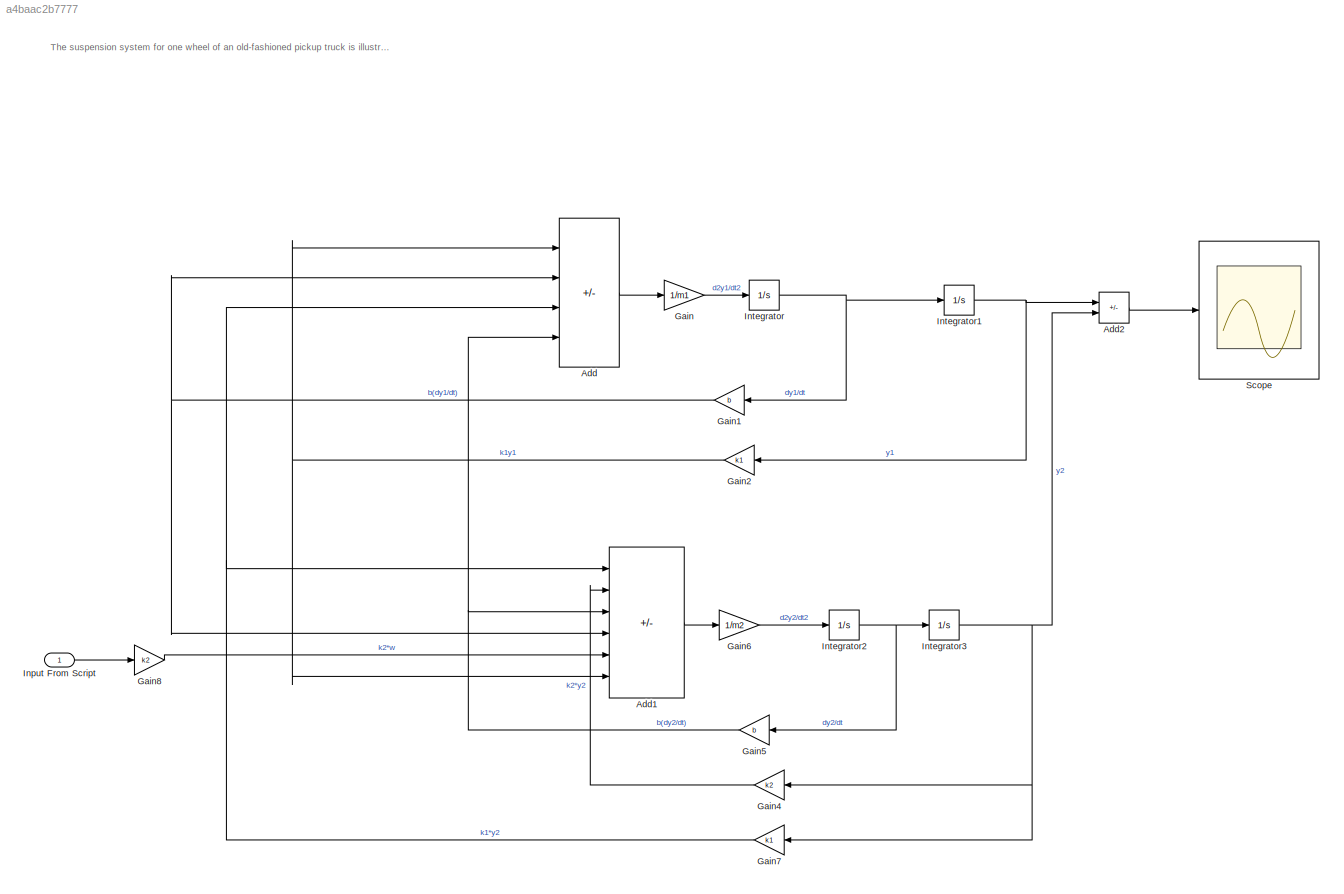
MODEL slx_a4baac2b7777
KIND model
CONFIG AbsTol = auto
CONFIG EnableMultiTasking = off
CONFIG FixedStep = auto
CONFIG MaxStep = 2.0
CONFIG MinStep = auto
CONFIG RelTol = 1e-3
CONFIG SampleTimeConstraint = Unconstrained
CONFIG Solver = VariableStepAuto
CONFIG SolverName = VariableStepAuto
CONFIG StartTime = 0.0
CONFIG StopTime = 100.0
WORKSPACE source: mxarray member
WORKSPACE b = 350
WORKSPACE k1 = 50000
WORKSPACE k2 = 50000
WORKSPACE m1 = 2500
WORKSPACE m2 = 2500
BLOCK [Sum] Add
  IconShape = rectangular
  Inputs = --++
  Ports = [4, 1]
BLOCK [Sum] Add1
  IconShape = rectangular
  Inputs = ---+++
  Ports = [6, 1]
BLOCK [Sum] Add2
  IconShape = rectangular
  Inputs = +-
  Ports = [2, 1]
BLOCK [Gain] Gain
  Gain = 1/m1
BLOCK [Gain] Gain1
  Gain = b
  NameLocation = top
BLOCK [Gain] Gain2
  Gain = k1
  NameLocation = top
BLOCK [Gain] Gain4
  Gain = k2
  NameLocation = top
BLOCK [Gain] Gain5
  Gain = b
  NameLocation = top
BLOCK [Gain] Gain6
  Gain = 1/m2
BLOCK [Gain] Gain7
  Gain = k1
  NameLocation = top
BLOCK [Gain] Gain8
  Gain = k2
BLOCK [Inport] Input From Script
BLOCK [Integrator] Integrator
  Ports = [1, 1]
BLOCK [Integrator] Integrator1
  Ports = [1, 1]
BLOCK [Integrator] Integrator2
  Ports = [1, 1]
BLOCK [Integrator] Integrator3
  Ports = [1, 1]
BLOCK [Scope] Scope
  Floating = off
  NumInputPorts = 1
  Ports = [1]
  ScopeSpecificationString = Simulink.scopes.TimeScopeBlockCfg('CurrentConfiguration', extmgr.ConfigurationSet(extmgr.Configuration('Core','General UI',true),extmgr.Configuration('Core','Source UI',true),extmgr.Configuration('Sources','WiredSimulink',true),extmgr.Configuration('Visuals','Time Domain',true,'SerializedDisplays',{struct('MinYLimReal','-0.00034','MaxYLimReal','0.00021','YLabelReal','','MinYLimMag','0.00000','MaxY...<+1425ch>
ANNOTATION (root): The suspension system for one wheel of an old-fashioned pickup truck is illustrated in figure 2. The mass of the vehicle is m1 and the mass of the wheel is m2. The suspension spring has a spring constant k1 and the tire had the spring constant k2. The damping constant of the shock absorber is b. Obtain the mathematical model which represent the vehicle response to bump in the road and simulate it ...<+90ch>
LINE Add1:1 -> Gain6:1
LINE Add2:1 -> Scope:1
LINE Add:1 -> Gain:1
NET Gain1:1 -> Add1:4, Add:2
NET Gain2:1 -> Add1:6, Add:1
LINE Gain4:1 -> Add1:2
NET Gain5:1 -> Add1:3, Add:4
LINE Gain6:1 -> Integrator2:1
NET Gain7:1 -> Add1:1, Add:3
LINE Gain8:1 -> Add1:5
LINE Gain:1 -> Integrator:1
LINE Input From Script:1 -> Gain8:1
NET Integrator1:1 -> Add2:1, Gain2:1
NET Integrator2:1 -> Gain5:1, Integrator3:1
NET Integrator3:1 -> Add2:2, Gain4:1, Gain7:1
NET Integrator:1 -> Gain1:1, Integrator1:1
note: NET lines group one-source signal fan-out (src -> all destinations, sorted); 1:1 wires keep LINE
